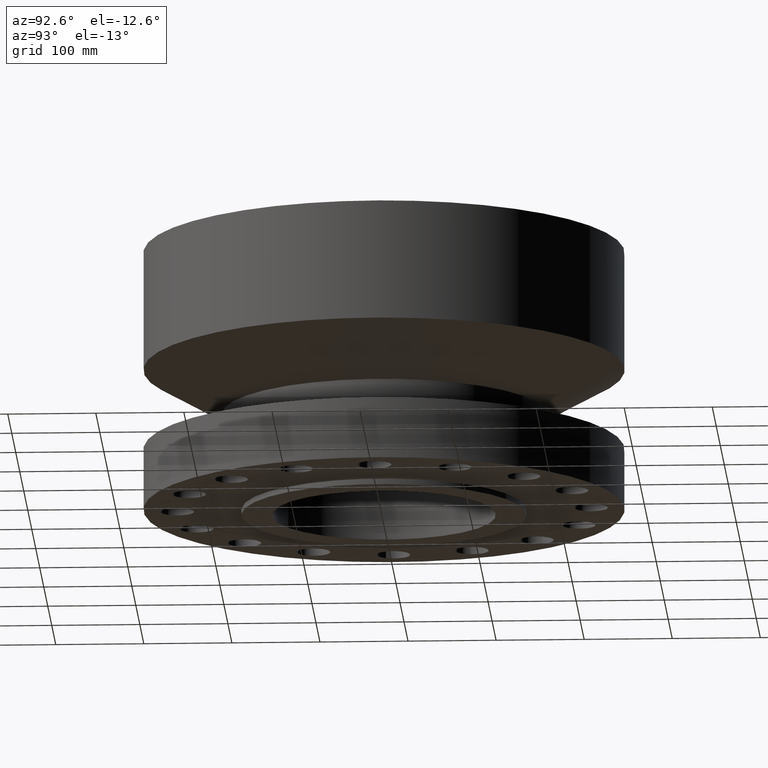
[diagram: clean part render]
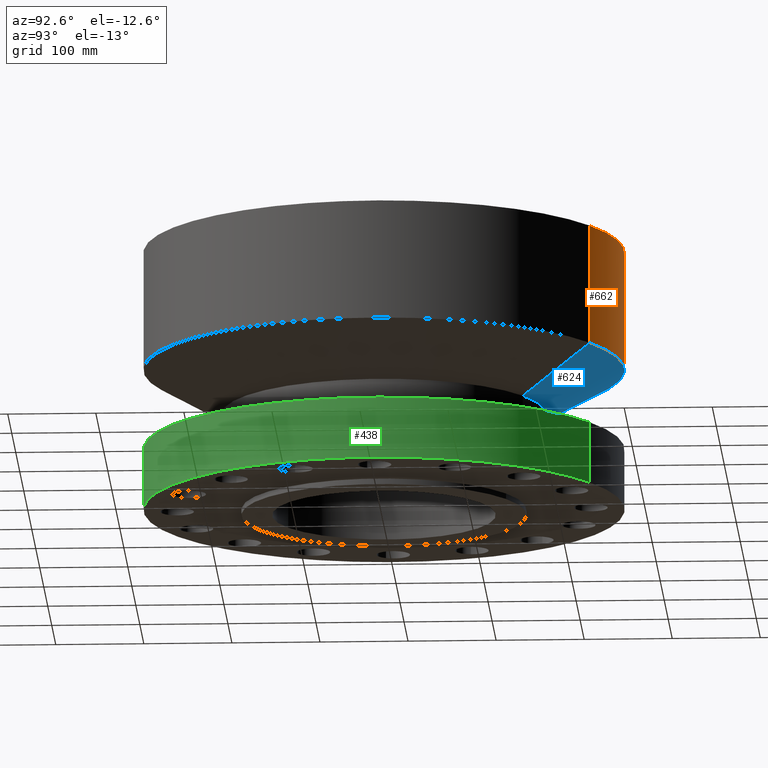
[diagram: same view with three faces highlighted in distinct colors, each labeled with its STEP entity id]
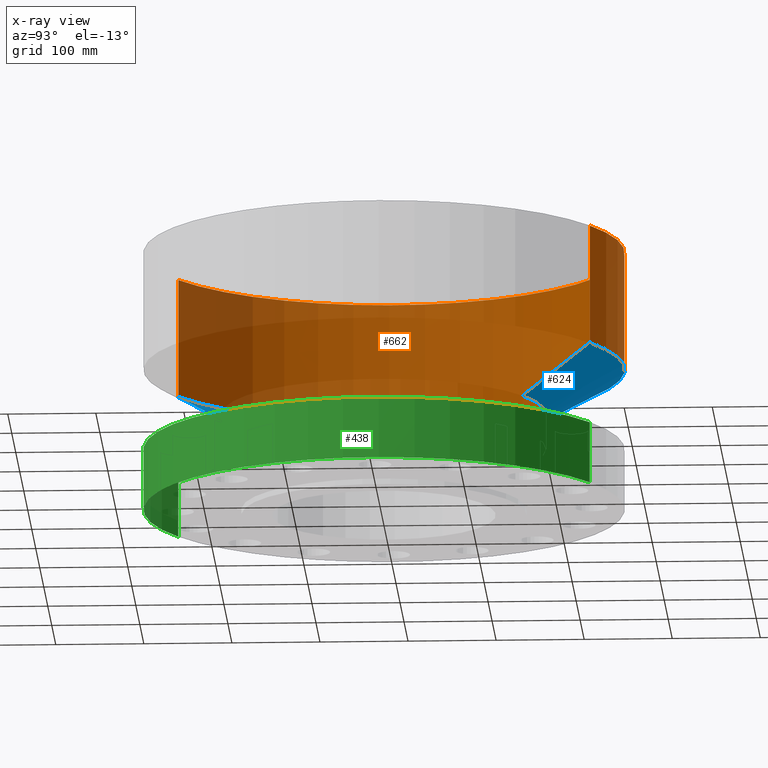
[diagram: x-ray of the same camera — body ghosted, the three highlighted faces saturated]
A machine part, auxiliary view with three faces highlighted in distinct colors.
The next image is the same camera in x-ray (body ghosted, the three faces saturated) — at least one of them is partly hidden behind the body in this view.
Their STEP definitions:

[orange] entity #662 — the highlighted cylindrical surface (partial cylindrical patch) has radius 273.05 mm, axis along (0, 0, -1).
#399=AXIS2_PLACEMENT_3D('Cylinder Axis2P3D',#396,#397,#398) ;
#615=AXIS2_PLACEMENT_3D('Circle Axis2P3D',#613,#614,$) ;
#653=AXIS2_PLACEMENT_3D('Circle Axis2P3D',#651,#652,$) ;
#396=CARTESIAN_POINT('Axis2P3D Location',(0.,0.,5.75000000002)) ;
#591=CARTESIAN_POINT('Vertex',(5.15382454002,9.43401254036,6.39072594219)) ;
#598=CARTESIAN_POINT('Vertex',(-5.15382454002,-9.43401254036,6.39072594219)) ;
#613=CARTESIAN_POINT('Axis2P3D Location',(0.,0.,6.39072594219)) ;
#625=CARTESIAN_POINT('Line Origine',(5.15382454002,9.43401254036,9.07036297112)) ;
#629=CARTESIAN_POINT('Vertex',(5.15382454002,9.43401254036,11.75)) ;
#636=CARTESIAN_POINT('Vertex',(-5.15382454002,-9.43401254036,11.75)) ;
#639=CARTESIAN_POINT('Line Origine',(-5.15382454002,-9.43401254036,9.07036297112)) ;
#651=CARTESIAN_POINT('Axis2P3D Location',(0.,0.,11.75)) ;
#397=DIRECTION('Axis2P3D Direction',(0.,0.,-0.0393700787402)) ;
#398=DIRECTION('Axis2P3D XDirection',(-0.0188750212049,-0.0345504945626,0.)) ;
#614=DIRECTION('Axis2P3D Direction',(-0.,0.,0.0393700787402)) ;
#626=DIRECTION('Vector Direction',(0.,0.,-0.0393700787402)) ;
#640=DIRECTION('Vector Direction',(0.,0.,-0.0393700787402)) ;
#652=DIRECTION('Axis2P3D Direction',(0.,0.,-0.0393700787402)) ;
#627=VECTOR('Line Direction',#626,0.0393700787402) ;
#641=VECTOR('Line Direction',#640,0.0393700787402) ;
#657=ORIENTED_EDGE('',*,*,#617,.F.) ;
#658=ORIENTED_EDGE('',*,*,#643,.T.) ;
#659=ORIENTED_EDGE('',*,*,#655,.T.) ;
#660=ORIENTED_EDGE('',*,*,#631,.F.) ;
#662=ADVANCED_FACE('PartBody',(#661),#400,.T.) ;
#616=CIRCLE('generated circle',#615,10.75) ;
#654=CIRCLE('generated circle',#653,10.75) ;
#400=CYLINDRICAL_SURFACE('generated cylinder',#399,10.75) ;
#617=EDGE_CURVE('',#599,#592,#616,.F.) ;
#631=EDGE_CURVE('',#592,#630,#628,.F.) ;
#643=EDGE_CURVE('',#599,#637,#642,.F.) ;
#655=EDGE_CURVE('',#637,#630,#654,.T.) ;
#656=EDGE_LOOP('',(#657,#658,#659,#660)) ;
#661=FACE_OUTER_BOUND('',#656,.T.) ;
#628=LINE('Line',#625,#627) ;
#642=LINE('Line',#639,#641) ;
#592=VERTEX_POINT('',#591) ;
#599=VERTEX_POINT('',#598) ;
#630=VERTEX_POINT('',#629) ;
#637=VERTEX_POINT('',#636) ;

[blue] entity #624 — the highlighted conical surface has half-angle 60 deg.
#572=AXIS2_PLACEMENT_3D('Circle Axis2P3D',#570,#571,$) ;
#585=AXIS2_PLACEMENT_3D('Cone Axis2P3D',#582,#583,#584) ;
#615=AXIS2_PLACEMENT_3D('Circle Axis2P3D',#613,#614,$) ;
#548=CARTESIAN_POINT('Vertex',(3.47583515489,6.36247357373,4.37000000002)) ;
#555=CARTESIAN_POINT('Vertex',(-3.47583515489,-6.36247357373,4.37000000002)) ;
#570=CARTESIAN_POINT('Axis2P3D Location',(0.,0.,4.37000000002)) ;
#582=CARTESIAN_POINT('Axis2P3D Location',(0.,0.,4.37000000002)) ;
#587=CARTESIAN_POINT('Line Origine',(4.31482984746,7.89824305704,5.3803629711)) ;
#591=CARTESIAN_POINT('Vertex',(5.15382454002,9.43401254036,6.39072594219)) ;
#598=CARTESIAN_POINT('Vertex',(-5.15382454002,-9.43401254036,6.39072594219)) ;
#601=CARTESIAN_POINT('Line Origine',(-4.31482984746,-7.89824305704,5.3803629711)) ;
#613=CARTESIAN_POINT('Axis2P3D Location',(0.,0.,6.39072594219)) ;
#571=DIRECTION('Axis2P3D Direction',(0.,0.,-0.0393700787402)) ;
#583=DIRECTION('Axis2P3D Direction',(-0.,-0.,0.0393700787402)) ;
#584=DIRECTION('Axis2P3D XDirection',(0.0188750212049,0.0345504945626,0.)) ;
#588=DIRECTION('Vector Direction',(0.0163462478604,0.0299216060045,0.0196850393701)) ;
#602=DIRECTION('Vector Direction',(-0.0163462478604,-0.0299216060045,0.0196850393701)) ;
#614=DIRECTION('Axis2P3D Direction',(-0.,0.,0.0393700787402)) ;
#589=VECTOR('Line Direction',#588,0.0393700787402) ;
#603=VECTOR('Line Direction',#602,0.0393700787402) ;
#619=ORIENTED_EDGE('',*,*,#574,.F.) ;
#620=ORIENTED_EDGE('',*,*,#605,.T.) ;
#621=ORIENTED_EDGE('',*,*,#617,.T.) ;
#622=ORIENTED_EDGE('',*,*,#593,.F.) ;
#624=ADVANCED_FACE('PartBody',(#623),#586,.T.) ;
#573=CIRCLE('generated circle',#572,7.25000000003) ;
#616=CIRCLE('generated circle',#615,10.75) ;
#586=CONICAL_SURFACE('Cone',#585,7.25000000003,1.0471975512) ;
#574=EDGE_CURVE('',#556,#549,#573,.T.) ;
#593=EDGE_CURVE('',#549,#592,#590,.T.) ;
#605=EDGE_CURVE('',#556,#599,#604,.T.) ;
#617=EDGE_CURVE('',#599,#592,#616,.F.) ;
#618=EDGE_LOOP('',(#619,#620,#621,#622)) ;
#623=FACE_OUTER_BOUND('',#618,.T.) ;
#590=LINE('Line',#587,#589) ;
#604=LINE('Line',#601,#603) ;
#549=VERTEX_POINT('',#548) ;
#556=VERTEX_POINT('',#555) ;
#592=VERTEX_POINT('',#591) ;
#599=VERTEX_POINT('',#598) ;

[green] entity #438 — the highlighted cylindrical surface (partial cylindrical patch) has radius 273.05 mm, axis along (0, 0, -1).
#91=AXIS2_PLACEMENT_3D('Circle Axis2P3D',#89,#90,$) ;
#399=AXIS2_PLACEMENT_3D('Cylinder Axis2P3D',#396,#397,#398) ;
#429=AXIS2_PLACEMENT_3D('Circle Axis2P3D',#427,#428,$) ;
#84=CARTESIAN_POINT('Vertex',(-5.15382454002,-9.43401254036,1.1189649382E-015)) ;
#86=CARTESIAN_POINT('Vertex',(5.15382454002,9.43401254036,1.1189649382E-015)) ;
#89=CARTESIAN_POINT('Axis2P3D Location',(0.,0.,0.)) ;
#396=CARTESIAN_POINT('Axis2P3D Location',(0.,0.,5.75000000002)) ;
#401=CARTESIAN_POINT('Line Origine',(-5.15382454002,-9.43401254036,9.07036297112)) ;
#405=CARTESIAN_POINT('Vertex',(-5.15382454002,-9.43401254036,2.75000000001)) ;
#412=CARTESIAN_POINT('Vertex',(5.15382454002,9.43401254036,2.75000000001)) ;
#415=CARTESIAN_POINT('Line Origine',(5.15382454002,9.43401254036,9.07036297112)) ;
#427=CARTESIAN_POINT('Axis2P3D Location',(0.,0.,2.75000000001)) ;
#90=DIRECTION('Axis2P3D Direction',(0.,0.,-0.0393700787402)) ;
#397=DIRECTION('Axis2P3D Direction',(0.,0.,-0.0393700787402)) ;
#398=DIRECTION('Axis2P3D XDirection',(-0.0188750212049,-0.0345504945626,0.)) ;
#402=DIRECTION('Vector Direction',(0.,0.,-0.0393700787402)) ;
#416=DIRECTION('Vector Direction',(0.,0.,-0.0393700787402)) ;
#428=DIRECTION('Axis2P3D Direction',(0.,0.,-0.0393700787402)) ;
#403=VECTOR('Line Direction',#402,0.0393700787402) ;
#417=VECTOR('Line Direction',#416,0.0393700787402) ;
#433=ORIENTED_EDGE('',*,*,#93,.F.) ;
#434=ORIENTED_EDGE('',*,*,#419,.T.) ;
#435=ORIENTED_EDGE('',*,*,#431,.T.) ;
#436=ORIENTED_EDGE('',*,*,#407,.F.) ;
#438=ADVANCED_FACE('PartBody',(#437),#400,.T.) ;
#92=CIRCLE('generated circle',#91,10.75) ;
#430=CIRCLE('generated circle',#429,10.75) ;
#400=CYLINDRICAL_SURFACE('generated cylinder',#399,10.75) ;
#93=EDGE_CURVE('',#87,#85,#92,.T.) ;
#407=EDGE_CURVE('',#85,#406,#404,.F.) ;
#419=EDGE_CURVE('',#87,#413,#418,.F.) ;
#431=EDGE_CURVE('',#413,#406,#430,.T.) ;
#432=EDGE_LOOP('',(#433,#434,#435,#436)) ;
#437=FACE_OUTER_BOUND('',#432,.T.) ;
#404=LINE('Line',#401,#403) ;
#418=LINE('Line',#415,#417) ;
#85=VERTEX_POINT('',#84) ;
#87=VERTEX_POINT('',#86) ;
#406=VERTEX_POINT('',#405) ;
#413=VERTEX_POINT('',#412) ;